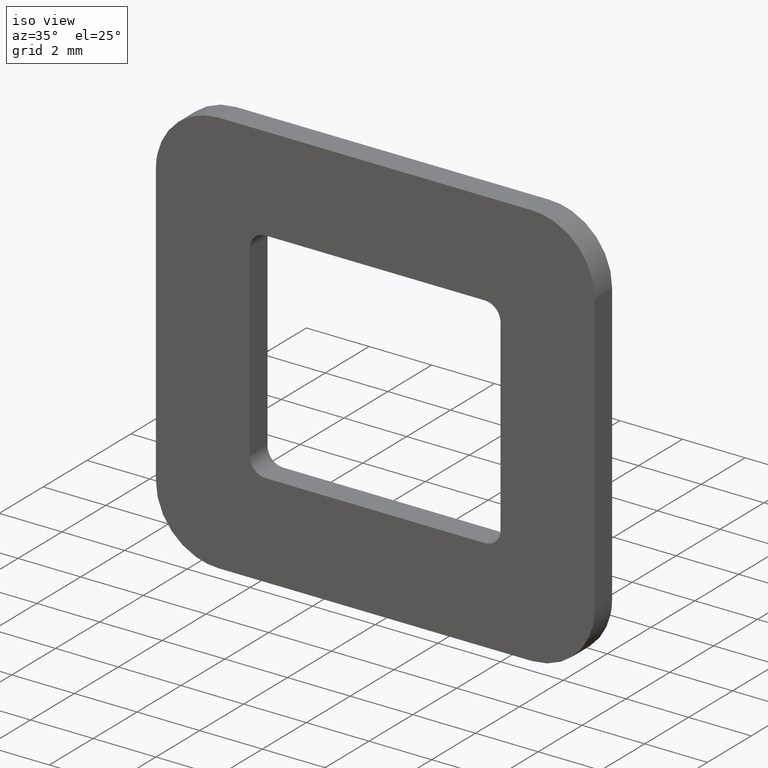
[diagram: clean part render]
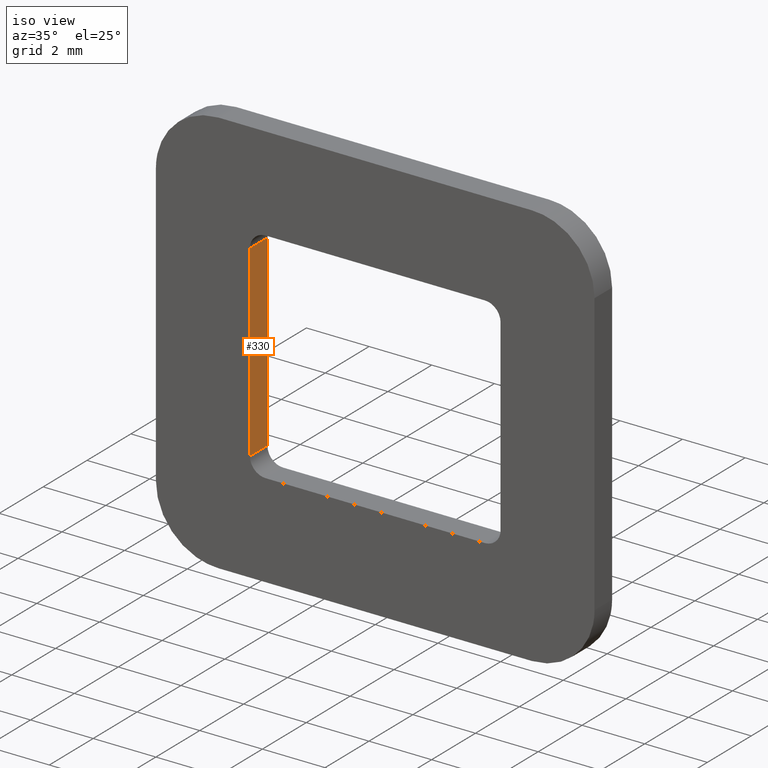
[diagram: same view with one face highlighted and labeled with its STEP entity id]
A machine part, iso view. The second image highlights one B-rep face of the part: STEP entity #330.
In plain terms, the highlighted face is a freeform B-spline surface patch.
Its self-contained STEP definition (entity closure, byte-faithful):
#260=CARTESIAN_POINT('',(-4.0,0.0,-3.0));
#261=VERTEX_POINT('',#260);
#278=CARTESIAN_POINT('',(-4.0,0.800003000000049,-3.0));
#279=VERTEX_POINT('',#278);
#295=CARTESIAN_POINT('',(-4.0,0.800003000000049,-3.0));
#296=CARTESIAN_POINT('',(-4.0,0.0,-3.0));
#297=QUASI_UNIFORM_CURVE('',1,(#295,#296),.UNSPECIFIED.,.F.,.U.);
#298=EDGE_CURVE('',#279,#261,#297,.T.);
#303=CARTESIAN_POINT('',(-4.0,-0.039960148299441,-3.299699988370836));
#304=CARTESIAN_POINT('',(-4.0,-0.039960148299441,3.299700149303377));
#305=CARTESIAN_POINT('',(-4.0,0.839963169757243,-3.299699988370836));
#306=CARTESIAN_POINT('',(-4.0,0.839963169757243,3.299700149303377));
#307=B_SPLINE_SURFACE_WITH_KNOTS('',1,1,((#303,#305),(#304,#306)),.UNSPECIFIED.,.F.,.F.,.U.,(2,2),(2,2),(0.0,6.599400137674213),(0.041708334948495,0.958291687403247),.UNSPECIFIED.);
#308=CARTESIAN_POINT('',(-4.0,0.0,3.0));
#309=VERTEX_POINT('',#308);
#310=CARTESIAN_POINT('',(-4.0,0.0,3.0));
#311=CARTESIAN_POINT('',(-4.0,0.0,-3.0));
#312=QUASI_UNIFORM_CURVE('',1,(#310,#311),.UNSPECIFIED.,.F.,.U.);
#313=EDGE_CURVE('',#309,#261,#312,.T.);
#314=ORIENTED_EDGE('',*,*,#313,.T.);
#315=ORIENTED_EDGE('',*,*,#298,.F.);
#316=CARTESIAN_POINT('',(-4.0,0.800003000000049,3.0));
#317=VERTEX_POINT('',#316);
#318=CARTESIAN_POINT('',(-4.0,0.800003000000049,3.0));
#319=CARTESIAN_POINT('',(-4.0,0.800003000000049,-3.0));
#320=QUASI_UNIFORM_CURVE('',1,(#318,#319),.UNSPECIFIED.,.F.,.U.);
#321=EDGE_CURVE('',#317,#279,#320,.T.);
#322=ORIENTED_EDGE('',*,*,#321,.F.);
#323=CARTESIAN_POINT('',(-4.0,0.800003000000049,3.0));
#324=CARTESIAN_POINT('',(-4.0,0.0,3.0));
#325=QUASI_UNIFORM_CURVE('',1,(#323,#324),.UNSPECIFIED.,.F.,.U.);
#326=EDGE_CURVE('',#317,#309,#325,.T.);
#327=ORIENTED_EDGE('',*,*,#326,.T.);
#328=EDGE_LOOP('',(#314,#315,#322,#327));
#329=FACE_OUTER_BOUND('',#328,.T.);
#330=ADVANCED_FACE('',(#329),#307,.F.);